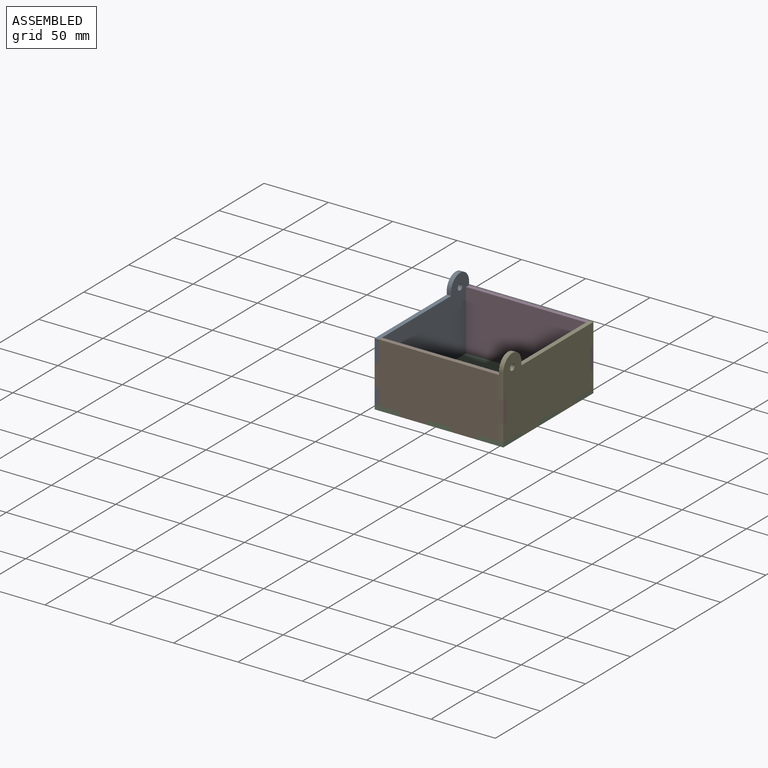
[diagram: assembled view]
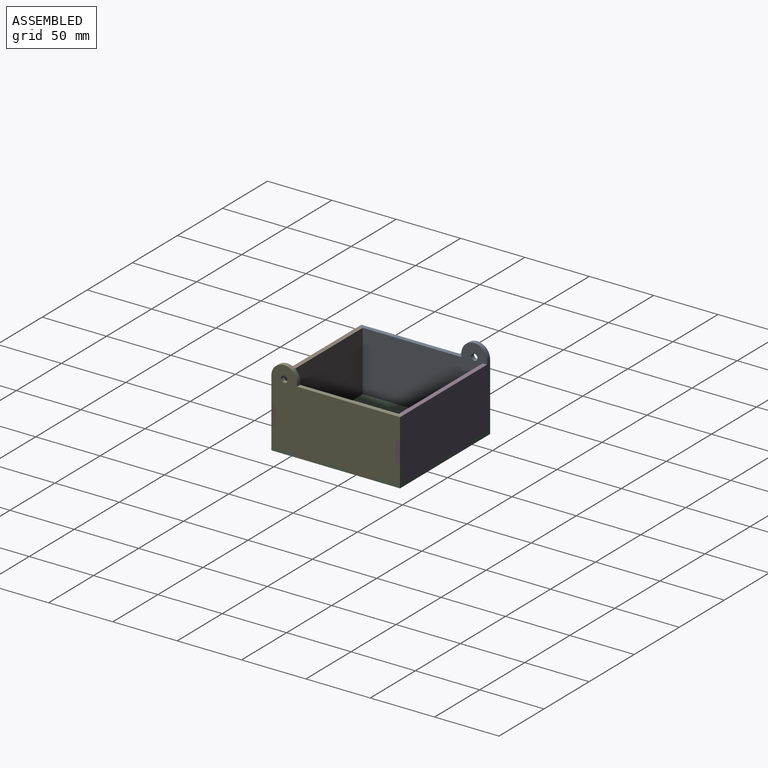
[diagram: assembled view, second angle]
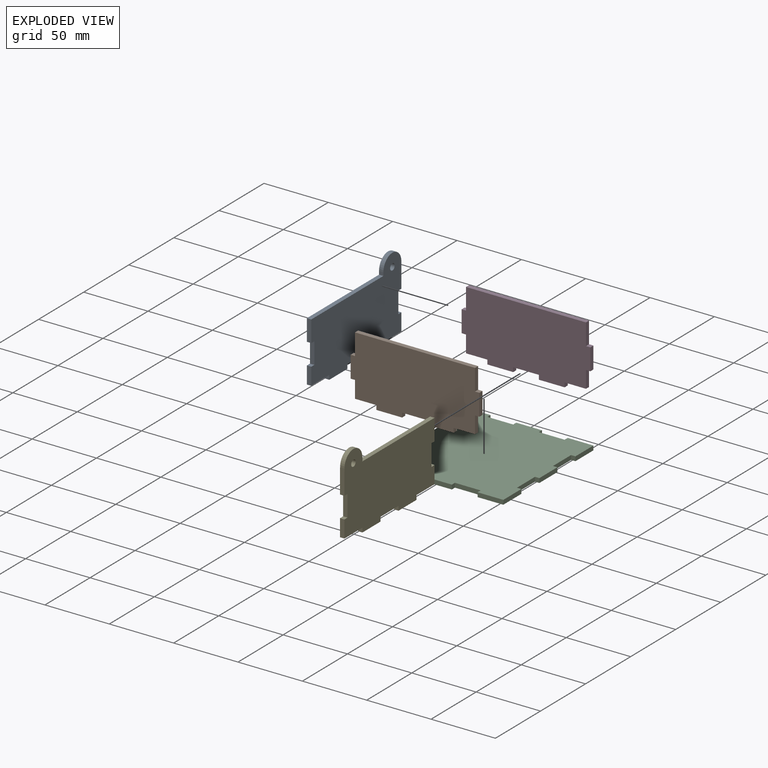
[diagram: exploded view]
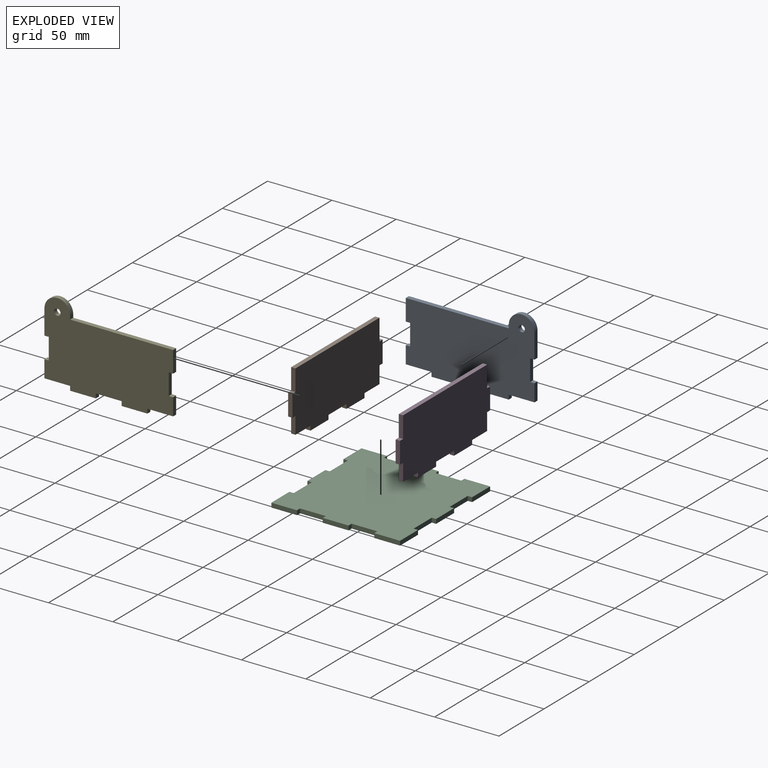
[diagram: exploded view, second angle]
ASSEMBLY  parts=5 mates=4
PART A: 31 faces, bbox 100x3.4x62.5 mm
  f0: plane 3.4x0.33mm, normal (0,0,1), area 1.1mm2, adj f20,f21,f22,f23
  f1: plane 80.31x3.4mm, normal (0,0,1), area 273.1mm2, adj f2,f21,f22,f25
  f2: plane 16.6x3.4mm, normal (-1,0,0), area 56.4mm2, adj f1,f3,f21,f22
  f3: plane 3.4x3.4mm, normal (0,0,-1), area 11.6mm2, adj f2,f4,f21,f22
  f4: plane 16.6x3.4mm, normal (-1,0,0), area 56.4mm2, adj f3,f5,f21,f22
  f5: plane 3.4x3.4mm, normal (0,0,1), area 11.6mm2, adj f4,f6,f21,f22
  f6: plane 13.4x3.4mm, normal (-1,0,0), area 45.6mm2, adj f5,f7,f21,f22
  f7: plane 20x3.4mm, normal (0,0,-1), area 68mm2, adj f6,f8,f21,f22
  f8: plane 3.4x3.4mm, normal (-1,0,0), area 11.6mm2, adj f7,f9,f21,f22
  f9: plane 20x3.4mm, normal (0,0,-1), area 68mm2, adj f8,f10,f21,f22
  f10: plane 3.4x3.4mm, normal (1,0,0), area 11.6mm2, adj f9,f11,f21,f22
  f11: plane 20x3.4mm, normal (0,0,-1), area 68mm2, adj f10,f12,f21,f22
  f12: plane 3.4x3.4mm, normal (-1,0,0), area 11.6mm2, adj f11,f13,f21,f22
  f13: plane 20x3.4mm, normal (0,0,-1), area 68mm2, adj f12,f14,f21,f22
  f14: plane 3.4x3.4mm, normal (1,0,0), area 11.6mm2, adj f13,f15,f21,f22
  f15: plane 20x3.4mm, normal (0,0,-1), area 68mm2, adj f14,f16,f21,f22
  f16: plane 13.4x3.4mm, normal (1,0,0), area 45.6mm2, adj f15,f17,f21,f22
  f17: plane 3.4x3.4mm, normal (0,0,1), area 11.6mm2, adj f16,f18,f21,f22
  f18: plane 16.6x3.4mm, normal (1,0,0), area 56.4mm2, adj f17,f19,f21,f22
  f19: plane 3.4x3.4mm, normal (0,0,-1), area 11.6mm2, adj f18,f20,f21,f22
  f20: plane 16.6x3.4mm, normal (1,0,0), area 56.4mm2, adj f0,f19,f21,f22
  f21: plane 100x62.51mm, normal (0,-1,0), area 4870.8mm2, adj f0,f1,f2,f3,f4,f5,f6,f7
  f22: plane 100x62.51mm, normal (0,1,0), area 4870.8mm2, adj f0,f1,f2,f3,f4,f5,f6,f7
  f23: cylinder r=10mm len=3.4mm, axis (0,1,0), area 0mm2, adj f0,f21,f22,f26
  f24: plane 3.4x0.32mm, normal (0,0,-1), area 1.1mm2, adj f21,f22,f25,f29
  f25: cylinder r=10mm len=3.4mm, axis (0,1,0), area 0mm2, adj f1,f21,f22,f24
  f26: plane 3.4x0.32mm, normal (0,0,-1), area 1.1mm2, adj f21,f22,f23,f27
  f27: plane 3.4x2.5mm, normal (1,0,0), area 8.5mm2, adj f21,f22,f26,f28
  f28: cylinder r=10mm len=20mm, axis (0,1,0), area 106.8mm2, adj f21,f22,f27,f29
  f29: plane 3.4x2.5mm, normal (-1,0,0), area 8.5mm2, adj f21,f22,f24,f28
  f30: cylinder r=2.5mm len=5mm, axis (0,1,0), area 53.4mm2, adj f21,f22
PART B: 22 faces, bbox 100x3.4x50 mm
  f0: plane 3.4x3.4mm, normal (-1,0,0), area 11.6mm2, adj f1,f19,f20,f21
  f1: plane 20x3.4mm, normal (0,0,-1), area 68mm2, adj f0,f2,f20,f21
  f2: plane 3.4x3.4mm, normal (1,0,0), area 11.6mm2, adj f1,f3,f20,f21
  f3: plane 16.6x3.4mm, normal (0,0,-1), area 56.4mm2, adj f2,f4,f20,f21
  f4: plane 13.2x3.4mm, normal (1,0,0), area 44.9mm2, adj f3,f5,f20,f21
  f5: plane 3.4x3.4mm, normal (0,0,-1), area 11.6mm2, adj f4,f6,f20,f21
  f6: plane 16.8x3.4mm, normal (1,0,0), area 57.1mm2, adj f5,f7,f20,f21
  f7: plane 3.4x3.4mm, normal (0,0,1), area 11.6mm2, adj f6,f8,f20,f21
  f8: plane 16.6x3.4mm, normal (1,0,0), area 56.4mm2, adj f7,f9,f20,f21
  f9: plane 93.2x3.4mm, normal (0,0,1), area 316.9mm2, adj f8,f10,f20,f21
  f10: plane 16.6x3.4mm, normal (-1,0,0), area 56.4mm2, adj f9,f11,f20,f21
  f11: plane 3.4x3.4mm, normal (0,0,1), area 11.6mm2, adj f10,f12,f20,f21
  f12: plane 16.8x3.4mm, normal (-1,0,0), area 57.1mm2, adj f11,f13,f20,f21
  f13: plane 3.4x3.4mm, normal (0,0,-1), area 11.6mm2, adj f12,f14,f20,f21
  f14: plane 13.2x3.4mm, normal (-1,0,0), area 44.9mm2, adj f13,f15,f20,f21
  f15: plane 16.6x3.4mm, normal (0,0,-1), area 56.4mm2, adj f14,f16,f20,f21
  f16: plane 3.4x3.4mm, normal (-1,0,0), area 11.6mm2, adj f15,f17,f20,f21
  f17: plane 20x3.4mm, normal (0,0,-1), area 68mm2, adj f16,f18,f20,f21
  f18: plane 3.4x3.4mm, normal (1,0,0), area 11.6mm2, adj f17,f19,f20,f21
  f19: plane 20x3.4mm, normal (0,0,-1), area 68mm2, adj f0,f18,f20,f21
  f20: plane 100x50mm, normal (0,-1,0), area 4593.4mm2, adj f0,f1,f2,f3,f4,f5,f6,f7
  f21: plane 100x50mm, normal (0,1,0), area 4593.4mm2, adj f0,f1,f2,f3,f4,f5,f6,f7
PART C: 38 faces, bbox 100x100x3.4 mm
  f0: plane 3.4x3.4mm, normal (1,0,0), area 11.6mm2, adj f1,f35,f36,f37
  f1: plane 20x3.4mm, normal (0,1,0), area 68mm2, adj f0,f2,f36,f37
  f2: plane 20x3.4mm, normal (-1,0,0), area 68mm2, adj f1,f3,f36,f37
  f3: plane 3.4x3.4mm, normal (0,-1,0), area 11.6mm2, adj f2,f4,f36,f37
  f4: plane 20x3.4mm, normal (-1,0,0), area 68mm2, adj f3,f5,f36,f37
  f5: plane 3.4x3.4mm, normal (0,1,0), area 11.6mm2, adj f4,f6,f36,f37
  f6: plane 20x3.4mm, normal (-1,0,0), area 68mm2, adj f5,f7,f36,f37
  f7: plane 3.4x3.4mm, normal (0,-1,0), area 11.6mm2, adj f6,f8,f36,f37
  f8: plane 20x3.4mm, normal (-1,0,0), area 68mm2, adj f7,f9,f36,f37
  f9: plane 3.4x3.4mm, normal (0,1,0), area 11.6mm2, adj f8,f10,f36,f37
  f10: plane 20x3.4mm, normal (-1,0,0), area 68mm2, adj f9,f11,f36,f37
  f11: plane 20x3.4mm, normal (0,-1,0), area 68mm2, adj f10,f12,f36,f37
  f12: plane 3.4x3.4mm, normal (1,0,0), area 11.6mm2, adj f11,f13,f36,f37
  f13: plane 20x3.4mm, normal (0,-1,0), area 68mm2, adj f12,f14,f36,f37
  f14: plane 3.4x3.4mm, normal (-1,0,0), area 11.6mm2, adj f13,f15,f36,f37
  f15: plane 20x3.4mm, normal (0,-1,0), area 68mm2, adj f14,f16,f36,f37
  f16: plane 3.4x3.4mm, normal (1,0,0), area 11.6mm2, adj f15,f17,f36,f37
  f17: plane 20x3.4mm, normal (0,-1,0), area 68mm2, adj f16,f18,f36,f37
  f18: plane 3.4x3.4mm, normal (-1,0,0), area 11.6mm2, adj f17,f19,f36,f37
  f19: plane 20x3.4mm, normal (0,-1,0), area 68mm2, adj f18,f20,f36,f37
  f20: plane 20x3.4mm, normal (1,0,0), area 68mm2, adj f19,f21,f36,f37
  f21: plane 3.4x3.4mm, normal (0,1,0), area 11.6mm2, adj f20,f22,f36,f37
  f22: plane 20x3.4mm, normal (1,0,0), area 68mm2, adj f21,f23,f36,f37
  f23: plane 3.4x3.4mm, normal (0,-1,0), area 11.6mm2, adj f22,f24,f36,f37
  f24: plane 20x3.4mm, normal (1,0,0), area 68mm2, adj f23,f25,f36,f37
  f25: plane 3.4x3.4mm, normal (0,1,0), area 11.6mm2, adj f24,f26,f36,f37
  f26: plane 20x3.4mm, normal (1,0,0), area 68mm2, adj f25,f27,f36,f37
  f27: plane 3.4x3.4mm, normal (0,-1,0), area 11.6mm2, adj f26,f28,f36,f37
  f28: plane 20x3.4mm, normal (1,0,0), area 68mm2, adj f27,f29,f36,f37
  f29: plane 20x3.4mm, normal (0,1,0), area 68mm2, adj f28,f30,f36,f37
  f30: plane 3.4x3.4mm, normal (-1,0,0), area 11.6mm2, adj f29,f31,f36,f37
  f31: plane 20x3.4mm, normal (0,1,0), area 68mm2, adj f30,f32,f36,f37
  f32: plane 3.4x3.4mm, normal (1,0,0), area 11.6mm2, adj f31,f33,f36,f37
  f33: plane 20x3.4mm, normal (0,1,0), area 68mm2, adj f32,f34,f36,f37
  f34: plane 3.4x3.4mm, normal (-1,0,0), area 11.6mm2, adj f33,f35,f36,f37
  f35: plane 20x3.4mm, normal (0,1,0), area 68mm2, adj f0,f34,f36,f37
  f36: plane 100x100mm, normal (0,0,1), area 9456mm2, adj f0,f1,f2,f3,f4,f5,f6,f7
  f37: plane 100x100mm, normal (0,0,-1), area 9456mm2, adj f0,f1,f2,f3,f4,f5,f6,f7
PART D: same geometry as B
PART E: same geometry as A
PLACE A rot(axis=(0,0,1),90deg) t=(5.31,19.83,17.56)mm
PLACE B t=(25.31,-9.78,22.31)mm
PLACE C t=(5.31,-13.18,5.64)mm
PLACE D t=(25.31,86.82,22.31)mm
PLACE E rot(axis=(0,0,-1),90deg) t=(105.31,53.82,17.56)mm
MATE fastened B.f16 <-> C.f12  axis (-1,0,0) through (25.31,-11.48,7.34)mm
MATE fastened E.f14 <-> C.f21  axis (0,-1,0) through (103.61,6.82,7.34)mm
MATE fastened D.f2 <-> C.f30  axis (1,0,0) through (85.31,85.12,7.34)mm
MATE fastened A.f14 <-> C.f3  axis (0,1,0) through (7.01,66.82,7.34)mm
